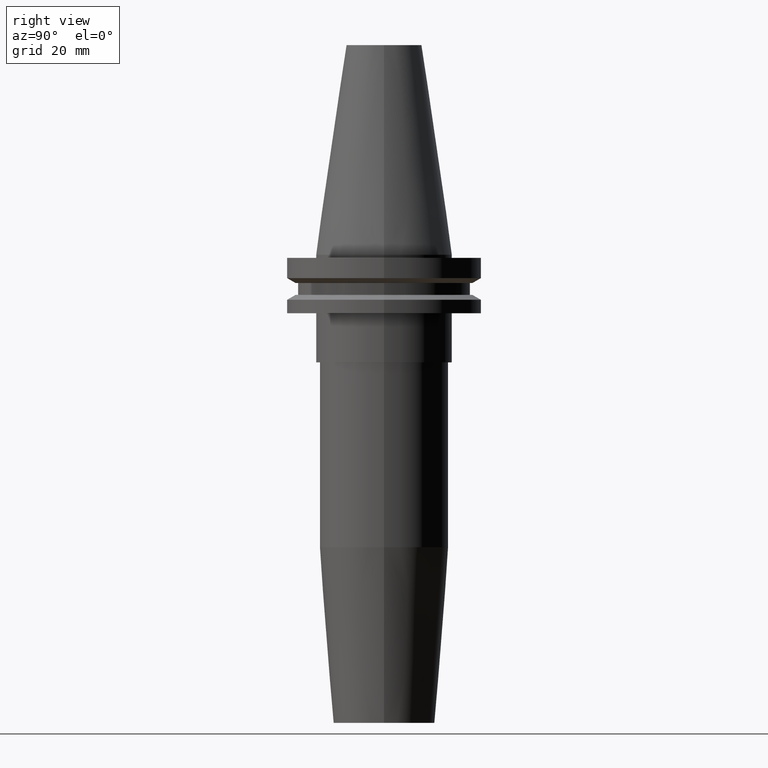
[diagram: clean part render]
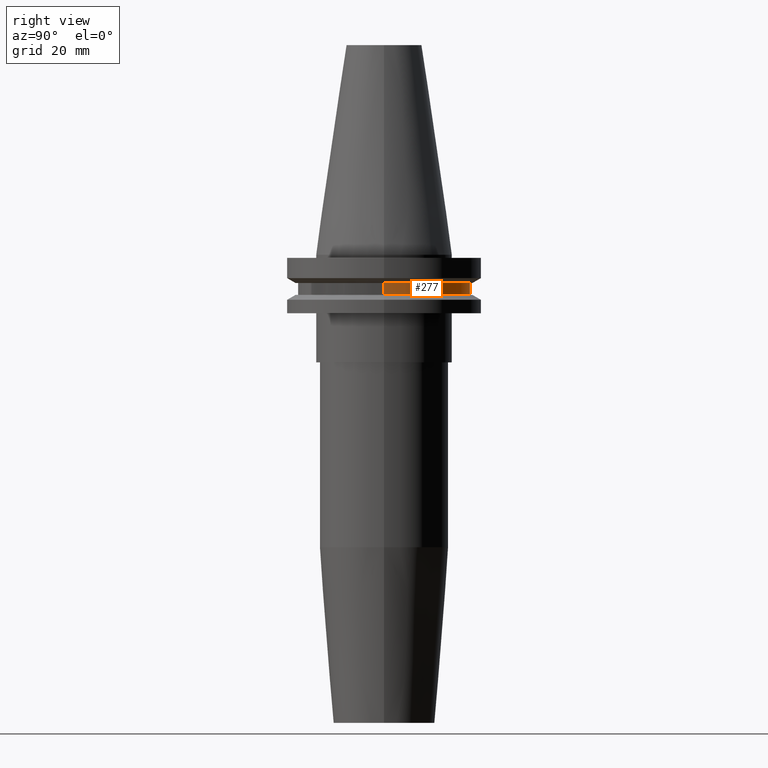
[diagram: same view with one face highlighted and labeled with its STEP entity id]
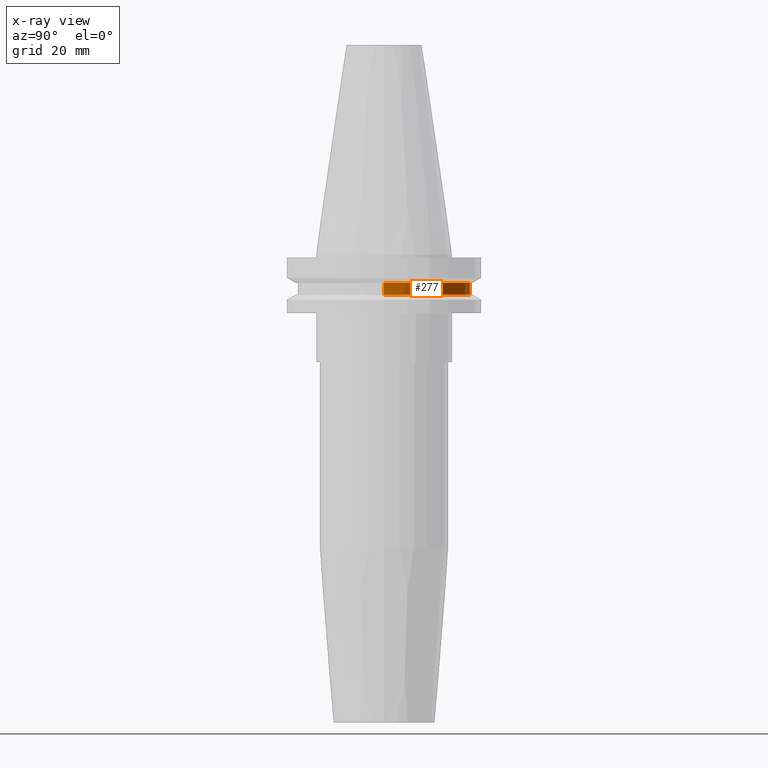
[diagram: x-ray of the same camera — body ghosted, the highlighted face saturated]
A machine part, right view. The second image highlights one B-rep face of the part: STEP entity #277.
The next image is the same camera in x-ray: the body ghosted, the highlighted face saturated — about 0% of this face is hidden behind the body in this view.
In plain terms, the highlighted cylindrical surface (partial cylindrical patch) has radius 28.18 mm, axis along (-0, -0, 1).
Its self-contained STEP definition (entity closure, byte-faithful):
#1 = DIRECTION ( 'NONE',  ( -0.000000000000000000, -0.000000000000000000, 1.000000000000000000 ) ) ;
#82 = CIRCLE ( 'NONE', #188, 28.17999999999999972 ) ;
#118 = DIRECTION ( 'NONE',  ( 1.000000000000000000, 0.000000000000000000, 0.000000000000000000 ) ) ;
#122 = CARTESIAN_POINT ( 'NONE',  ( 28.17999999999999972, 0.000000000000000000, 68.25000000000000000 ) ) ;
#123 = VECTOR ( 'NONE', #1, 1000.000000000000000 ) ;
#177 = DIRECTION ( 'NONE',  ( -0.000000000000000000, -0.000000000000000000, 1.000000000000000000 ) ) ;
#188 = AXIS2_PLACEMENT_3D ( 'NONE', #374, #365, #761 ) ;
#220 = VERTEX_POINT ( 'NONE', #650 ) ;
#233 = ORIENTED_EDGE ( 'NONE', *, *, #497, .F. ) ;
#234 = DIRECTION ( 'NONE',  ( 1.000000000000000000, 0.000000000000000000, 0.000000000000000000 ) ) ;
#277 = ADVANCED_FACE ( 'NONE', ( #582 ), #694, .T. ) ;
#286 = EDGE_CURVE ( 'NONE', #220, #757, #82, .T. ) ;
#305 = CARTESIAN_POINT ( 'NONE',  ( 0.000000000000000000, 0.000000000000000000, 68.25000000000000000 ) ) ;
#365 = DIRECTION ( 'NONE',  ( -0.000000000000000000, -0.000000000000000000, 1.000000000000000000 ) ) ;
#374 = CARTESIAN_POINT ( 'NONE',  ( 0.000000000000000000, 0.000000000000000000, -13.05499999999999794 ) ) ;
#387 = EDGE_CURVE ( 'NONE', #446, #691, #680, .T. ) ;
#446 = VERTEX_POINT ( 'NONE', #729 ) ;
#467 = AXIS2_PLACEMENT_3D ( 'NONE', #305, #177, #234 ) ;
#497 = EDGE_CURVE ( 'NONE', #220, #446, #731, .T. ) ;
#508 = EDGE_LOOP ( 'NONE', ( #608, #674, #760, #233 ) ) ;
#544 = AXIS2_PLACEMENT_3D ( 'NONE', #594, #725, #118 ) ;
#563 = LINE ( 'NONE', #808, #837 ) ;
#582 = FACE_OUTER_BOUND ( 'NONE', #508, .T. ) ;
#594 = CARTESIAN_POINT ( 'NONE',  ( 0.000000000000000000, 0.000000000000000000, -9.204999999999991189 ) ) ;
#608 = ORIENTED_EDGE ( 'NONE', *, *, #286, .T. ) ;
#629 = CARTESIAN_POINT ( 'NONE',  ( -28.17999999999999972, 3.451054679997241634E-15, -9.204999999999991189 ) ) ;
#650 = CARTESIAN_POINT ( 'NONE',  ( 28.17999999999999972, 0.000000000000000000, -13.05499999999999794 ) ) ;
#674 = ORIENTED_EDGE ( 'NONE', *, *, #766, .T. ) ;
#680 = CIRCLE ( 'NONE', #544, 28.17999999999999972 ) ;
#691 = VERTEX_POINT ( 'NONE', #629 ) ;
#694 = CYLINDRICAL_SURFACE ( 'NONE', #467, 28.17999999999999972 ) ;
#725 = DIRECTION ( 'NONE',  ( -0.000000000000000000, -0.000000000000000000, 1.000000000000000000 ) ) ;
#729 = CARTESIAN_POINT ( 'NONE',  ( 28.17999999999999972, 0.000000000000000000, -9.204999999999991189 ) ) ;
#731 = LINE ( 'NONE', #122, #123 ) ;
#753 = CARTESIAN_POINT ( 'NONE',  ( -28.17999999999999972, 3.451054679997241634E-15, -13.05499999999999794 ) ) ;
#757 = VERTEX_POINT ( 'NONE', #753 ) ;
#759 = DIRECTION ( 'NONE',  ( -0.000000000000000000, -0.000000000000000000, 1.000000000000000000 ) ) ;
#760 = ORIENTED_EDGE ( 'NONE', *, *, #387, .F. ) ;
#761 = DIRECTION ( 'NONE',  ( 1.000000000000000000, 0.000000000000000000, 0.000000000000000000 ) ) ;
#766 = EDGE_CURVE ( 'NONE', #757, #691, #563, .T. ) ;
#808 = CARTESIAN_POINT ( 'NONE',  ( -28.17999999999999972, 3.451054679997241634E-15, 68.25000000000000000 ) ) ;
#837 = VECTOR ( 'NONE', #759, 1000.000000000000000 ) ;